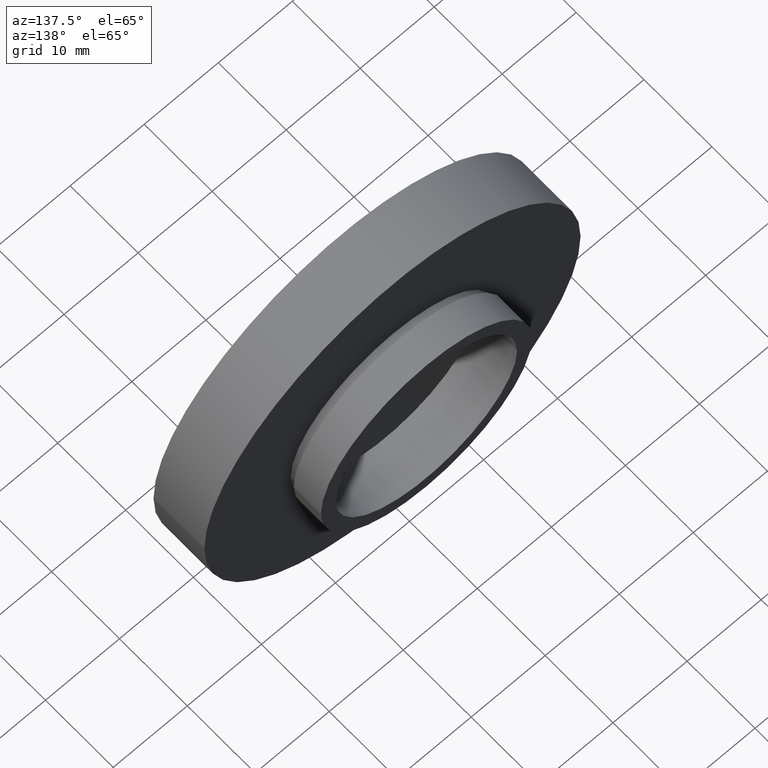
[diagram: clean part render]
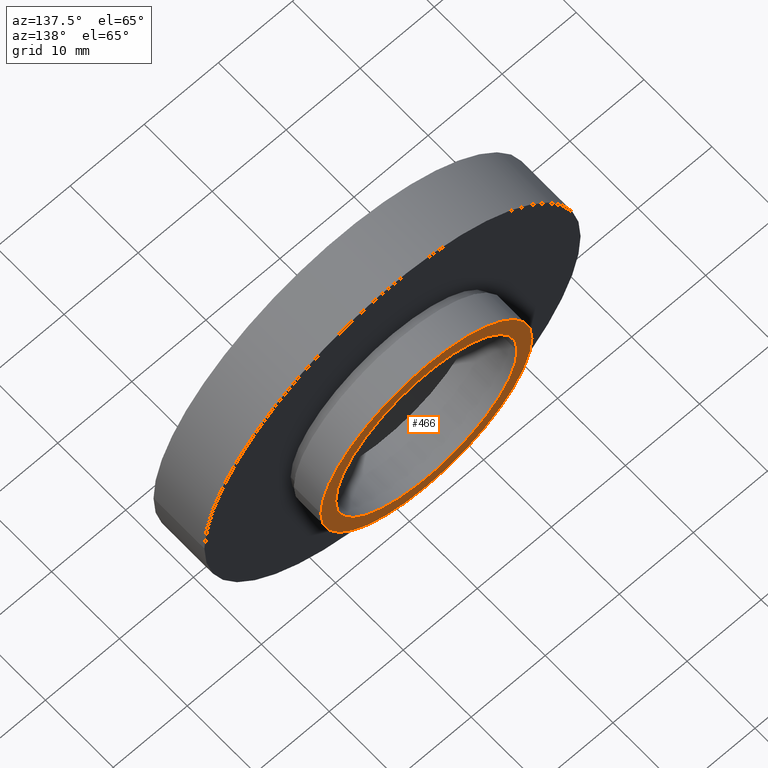
[diagram: same view with one face highlighted and labeled with its STEP entity id]
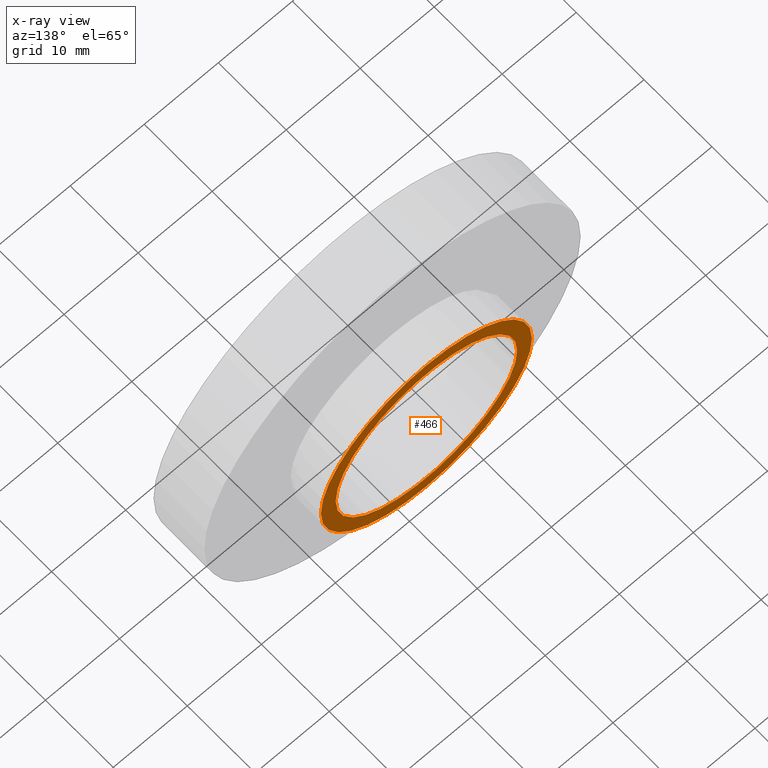
[diagram: x-ray of the same camera — body ghosted, the highlighted face saturated]
A machine part, auxiliary view. The second image highlights one B-rep face of the part: STEP entity #466.
The next image is the same camera in x-ray: the body ghosted, the highlighted face saturated — about 0% of this face is hidden behind the body in this view.
In plain terms, the highlighted planar face has unit normal (0, -1, 0).
Its self-contained STEP definition (entity closure, byte-faithful):
#6 = EDGE_LOOP ( 'NONE', ( #45, #181 ) ) ;
#7 = FACE_BOUND ( 'NONE', #33, .T. ) ;
#30 = DIRECTION ( 'NONE',  ( -1.224646799147351000E-016, 1.000000000000000000, -0.0000000000000000000 ) ) ;
#33 = EDGE_LOOP ( 'NONE', ( #518, #360 ) ) ;
#45 = ORIENTED_EDGE ( 'NONE', *, *, #465, .T. ) ;
#95 = CARTESIAN_POINT ( 'NONE',  ( 5.371323195044474300E-016, 12.49999999999999600, 0.0000000000000000000 ) ) ;
#117 = CARTESIAN_POINT ( 'NONE',  ( -14.25000000000000200, 12.49999999999999500, 0.0000000000000000000 ) ) ;
#126 = AXIS2_PLACEMENT_3D ( 'NONE', #269, #510, #417 ) ;
#128 = AXIS2_PLACEMENT_3D ( 'NONE', #95, #30, #607 ) ;
#150 = FACE_OUTER_BOUND ( 'NONE', #6, .T. ) ;
#152 = AXIS2_PLACEMENT_3D ( 'NONE', #236, #333, #459 ) ;
#153 = AXIS2_PLACEMENT_3D ( 'NONE', #275, #454, #536 ) ;
#162 = AXIS2_PLACEMENT_3D ( 'NONE', #372, #423, #370 ) ;
#168 = PLANE ( 'NONE',  #152 ) ;
#181 = ORIENTED_EDGE ( 'NONE', *, *, #503, .T. ) ;
#213 = VERTEX_POINT ( 'NONE', #565 ) ;
#236 = CARTESIAN_POINT ( 'NONE',  ( 12.25000000000000200, 12.49999999999999800, 0.0000000000000000000 ) ) ;
#269 = CARTESIAN_POINT ( 'NONE',  ( 5.371323195044474300E-016, 12.49999999999999600, 0.0000000000000000000 ) ) ;
#272 = CIRCLE ( 'NONE', #162, 14.25000000000000200 ) ;
#275 = CARTESIAN_POINT ( 'NONE',  ( 5.371323195044474300E-016, 12.49999999999999600, 0.0000000000000000000 ) ) ;
#300 = VERTEX_POINT ( 'NONE', #623 ) ;
#310 = CIRCLE ( 'NONE', #153, 12.25000000000000200 ) ;
#333 = DIRECTION ( 'NONE',  ( 1.224646799147351000E-016, -1.000000000000000000, 0.0000000000000000000 ) ) ;
#360 = ORIENTED_EDGE ( 'NONE', *, *, #460, .F. ) ;
#370 = DIRECTION ( 'NONE',  ( -1.000000000000000000, -1.217349807703022400E-016, 0.0000000000000000000 ) ) ;
#372 = CARTESIAN_POINT ( 'NONE',  ( 5.371323195044474300E-016, 12.49999999999999600, 0.0000000000000000000 ) ) ;
#408 = VERTEX_POINT ( 'NONE', #426 ) ;
#417 = DIRECTION ( 'NONE',  ( -1.000000000000000000, -1.217349807703022400E-016, 0.0000000000000000000 ) ) ;
#423 = DIRECTION ( 'NONE',  ( -1.224646799147351000E-016, 1.000000000000000000, -0.0000000000000000000 ) ) ;
#426 = CARTESIAN_POINT ( 'NONE',  ( -12.25000000000000200, 12.49999999999999500, 0.0000000000000000000 ) ) ;
#428 = CIRCLE ( 'NONE', #126, 14.25000000000000200 ) ;
#454 = DIRECTION ( 'NONE',  ( -1.224646799147351000E-016, 1.000000000000000000, -0.0000000000000000000 ) ) ;
#455 = VERTEX_POINT ( 'NONE', #117 ) ;
#459 = DIRECTION ( 'NONE',  ( 1.000000000000000000, 1.224646799147351000E-016, 0.0000000000000000000 ) ) ;
#460 = EDGE_CURVE ( 'NONE', #300, #408, #310, .T. ) ;
#465 = EDGE_CURVE ( 'NONE', #455, #213, #272, .T. ) ;
#466 = ADVANCED_FACE ( 'NONE', ( #7, #150 ), #168, .F. ) ;
#478 = EDGE_CURVE ( 'NONE', #408, #300, #513, .T. ) ;
#503 = EDGE_CURVE ( 'NONE', #213, #455, #428, .T. ) ;
#510 = DIRECTION ( 'NONE',  ( -1.224646799147351000E-016, 1.000000000000000000, -0.0000000000000000000 ) ) ;
#513 = CIRCLE ( 'NONE', #128, 12.25000000000000200 ) ;
#518 = ORIENTED_EDGE ( 'NONE', *, *, #478, .F. ) ;
#536 = DIRECTION ( 'NONE',  ( -1.000000000000000000, -1.416100796715760600E-016, 0.0000000000000000000 ) ) ;
#565 = CARTESIAN_POINT ( 'NONE',  ( 14.25000000000000200, 12.49999999999999800, 1.745121688784978600E-015 ) ) ;
#607 = DIRECTION ( 'NONE',  ( -1.000000000000000000, -1.416100796715760600E-016, 0.0000000000000000000 ) ) ;
#623 = CARTESIAN_POINT ( 'NONE',  ( 12.25000000000000400, 12.49999999999999800, 1.500192328955508100E-015 ) ) ;